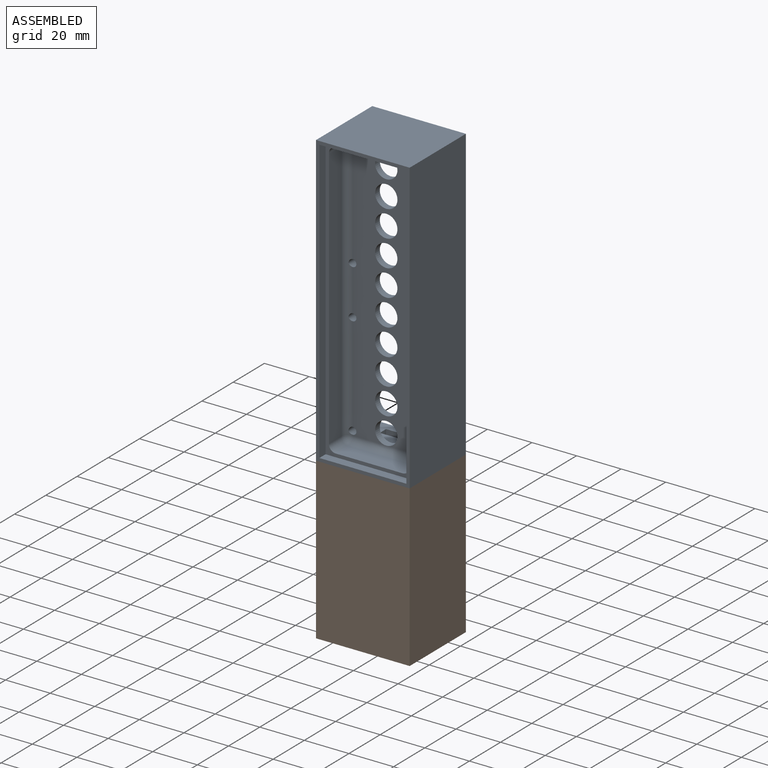
[diagram: assembled view]
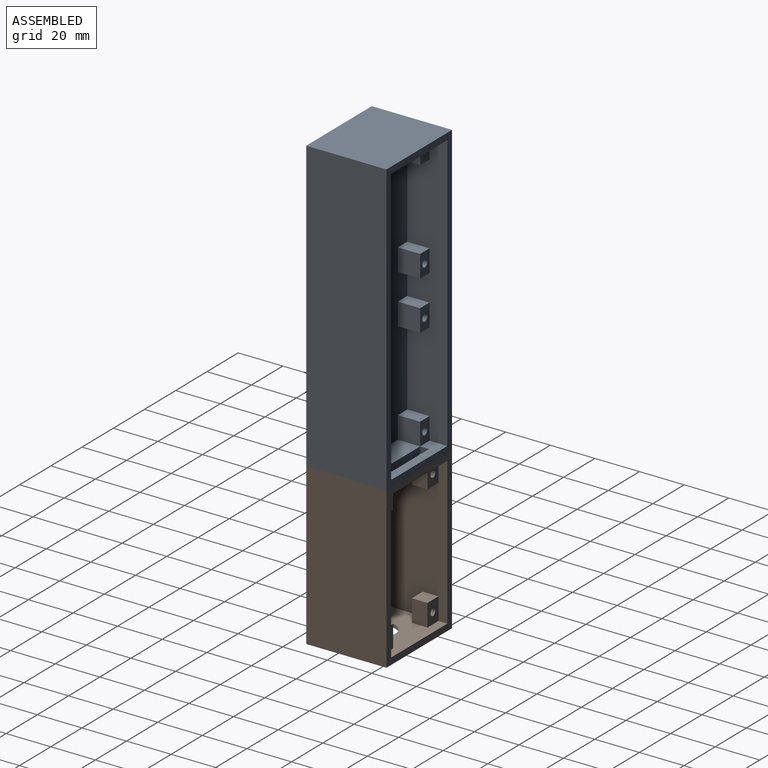
[diagram: assembled view, second angle]
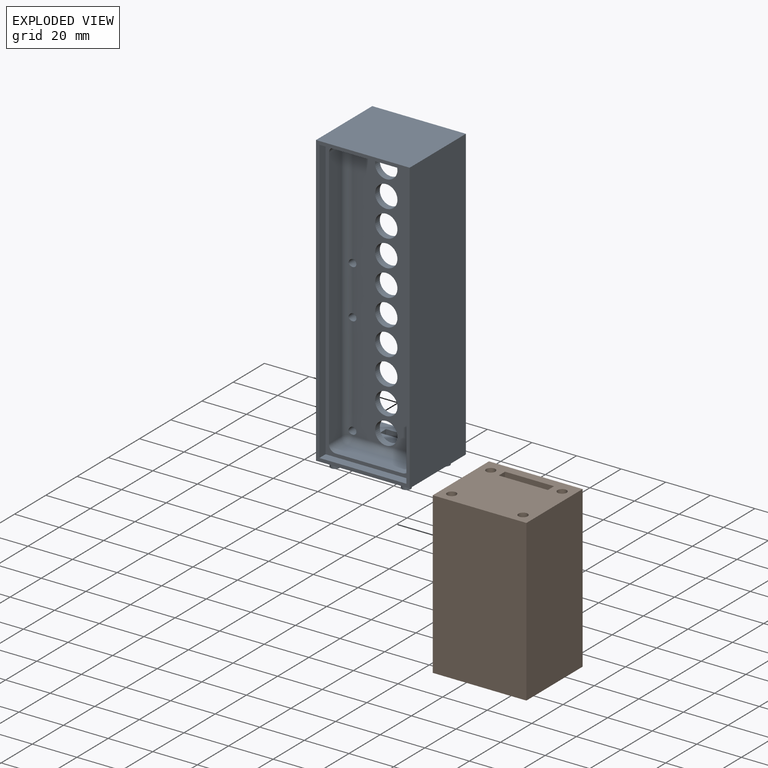
[diagram: exploded view]
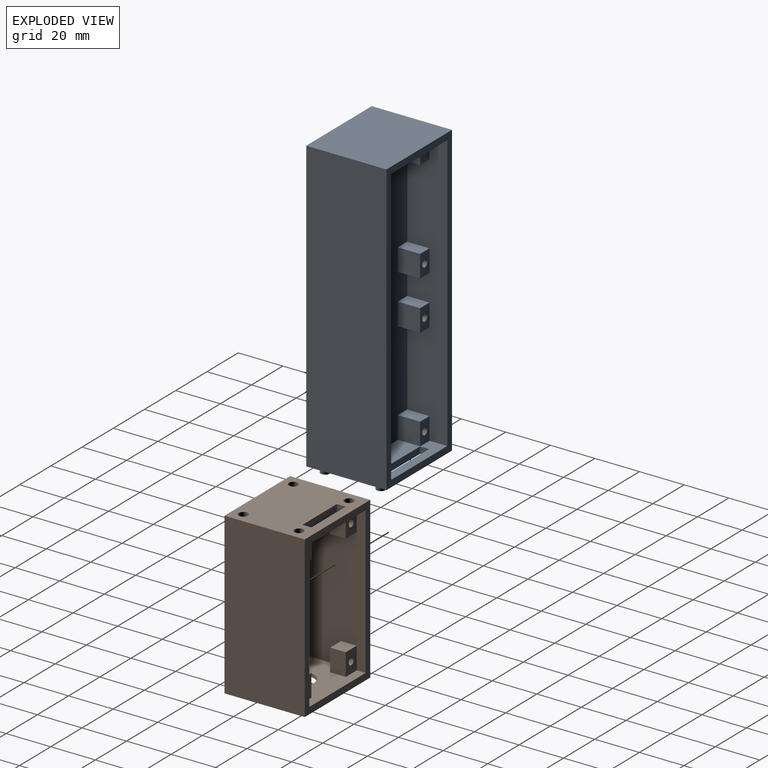
[diagram: exploded view, second angle]
ASSEMBLY  parts=2 mates=3
PART A: 92 faces, bbox 42x36x133 mm
  f0: plane 36x8mm, normal (0,0,1), area 192mm2, adj f16,f18,f20,f24,f56,f80,f82,f83
  f1: plane 127x39mm, normal (0,-1,0), area 496.7mm2, adj f59,f60,f61,f62,f63,f64,f65,f66
  f2: plane 118x30mm, normal (0,-1,0), area 2722.4mm2, adj f3,f4,f5,f6,f7,f8,f9,f10
  f3: cylinder r=5mm len=10mm, axis (0,1,0), area 94.2mm2, adj f2,f57
  f4: cylinder r=5mm len=10mm, axis (0,1,0), area 94.2mm2, adj f2,f57
  f5: cylinder r=5mm len=10mm, axis (0,1,0), area 94.2mm2, adj f2,f57
  f6: cylinder r=5mm len=10mm, axis (0,1,0), area 94.2mm2, adj f2,f57
  f7: cylinder r=5mm len=10mm, axis (0,1,0), area 94.2mm2, adj f2,f57
  f8: cylinder r=5mm len=10mm, axis (0,1,0), area 94.2mm2, adj f2,f57
  f9: cylinder r=5mm len=10mm, axis (0,1,0), area 94.2mm2, adj f2,f57
  f10: cylinder r=5mm len=10mm, axis (0,1,0), area 94.2mm2, adj f2,f57
  f11: cylinder r=5mm len=10mm, axis (0,1,0), area 94.2mm2, adj f2,f57
  f12: plane 42x36mm, normal (0,0,1), area 1512mm2, adj f13,f19,f20,f67
  f13: plane 130x36mm, normal (-1,0,0), area 4680mm2, adj f12,f14,f20,f67
  f14: plane 42x36mm, normal (0,0,-1), area 1365.7mm2, adj f13,f19,f20,f67,f80,f81,f82,f83
  f15: plane 36x18mm, normal (0,0,-1), area 528mm2, adj f16,f18,f20,f21,f25,f29,f30,f57
  f16: plane 124x18mm, normal (-1,0,0), area 1832mm2, adj f0,f15,f20,f21,f22,f23,f24,f31
  f17: plane 24x10mm, normal (0,0,1), area 240mm2, adj f39,f40,f57,f81
  f18: plane 124x18mm, normal (1,0,0), area 1832mm2, adj f0,f15,f20,f25,f26,f27,f28,f41
  f19: plane 130x36mm, normal (1,0,0), area 4680mm2, adj f12,f14,f20,f67
  f20: plane 130x42mm, normal (0,1,0), area 996mm2, adj f0,f12,f13,f14,f15,f16,f18,f19
  f21: plane 10x6mm, normal (0,1,0), area 52mm2, adj f15,f16,f30,f31,f47
  f22: plane 10x6mm, normal (0,1,0), area 52mm2, adj f16,f32,f33,f34,f48
  f23: plane 10x6mm, normal (0,1,0), area 52mm2, adj f16,f35,f36,f37,f49
  f24: plane 10x6mm, normal (0,1,0), area 52mm2, adj f0,f16,f38,f39,f50
  f25: plane 10x6mm, normal (0,1,0), area 52mm2, adj f15,f18,f28,f29,f55
  f26: plane 10x6mm, normal (0,1,0), area 52mm2, adj f18,f45,f46,f53,f54
  f27: plane 10x6mm, normal (0,1,0), area 52mm2, adj f18,f42,f43,f44,f52
  f28: plane 10x6mm, normal (0,0,-1), area 60mm2, adj f18,f25,f29,f57
  f29: plane 10x10mm, normal (1,0,0), area 100mm2, adj f15,f25,f28,f57
  f30: plane 10x10mm, normal (-1,0,0), area 100mm2, adj f15,f21,f31,f57
  f31: plane 10x6mm, normal (0,0,-1), area 60mm2, adj f16,f21,f30,f57
  f32: plane 10x6mm, normal (0,0,1), area 60mm2, adj f16,f22,f33,f57
  f33: plane 10x10mm, normal (-1,0,0), area 100mm2, adj f22,f32,f34,f57
  f34: plane 10x6mm, normal (0,0,-1), area 60mm2, adj f16,f22,f33,f57
  f35: plane 10x6mm, normal (0,0,1), area 60mm2, adj f16,f23,f36,f57
  f36: plane 10x10mm, normal (-1,0,0), area 100mm2, adj f23,f35,f37,f57
  f37: plane 10x6mm, normal (0,0,-1), area 60mm2, adj f16,f23,f36,f57
  f38: plane 10x6mm, normal (0,0,1), area 60mm2, adj f16,f24,f39,f57
  f39: plane 10x10mm, normal (-1,0,0), area 100mm2, adj f17,f24,f38,f57
  f40: plane 10x10mm, normal (1,0,0), area 100mm2, adj f17,f41,f56,f57
  f41: plane 10x6mm, normal (0,0,1), area 60mm2, adj f18,f40,f56,f57
  f42: plane 10x6mm, normal (0,0,-1), area 60mm2, adj f18,f27,f43,f57
  f43: plane 10x10mm, normal (1,0,0), area 100mm2, adj f27,f42,f44,f57
  f44: plane 10x6mm, normal (0,0,1), area 60mm2, adj f18,f27,f43,f57
  f45: plane 10x6mm, normal (0,0,-1), area 60mm2, adj f18,f26,f46,f57
  f46: plane 10x10mm, normal (1,0,0), area 100mm2, adj f26,f45,f54,f57
  f47: cylinder r=1.6mm len=13.46mm, axis (0,1,0), area 131.8mm2, adj f2,f21,f71
  f48: cylinder r=1.6mm len=13.46mm, axis (0,1,0), area 131.8mm2, adj f2,f22,f71
  f49: cylinder r=1.6mm len=13.46mm, axis (0,1,0), area 131.8mm2, adj f2,f23,f71
  f50: cylinder r=1.6mm len=13.46mm, axis (0,1,0), area 131.8mm2, adj f2,f24,f71
  f51: cylinder r=1.6mm len=13.46mm, axis (0,1,0), area 131.8mm2, adj f2,f56,f77
  f52: cylinder r=1.6mm len=13.46mm, axis (0,1,0), area 131.8mm2, adj f2,f27,f77
  f53: cylinder r=1.6mm len=13.46mm, axis (0,1,0), area 131.8mm2, adj f2,f26,f77
  f54: plane 10x6mm, normal (0,0,1), area 60mm2, adj f18,f26,f46,f57
  f55: cylinder r=1.6mm len=13.46mm, axis (0,1,0), area 131.8mm2, adj f2,f25,f77
  f56: plane 10x6mm, normal (0,1,0), area 52mm2, adj f0,f18,f40,f41,f51
  f57: plane 124x36mm, normal (0,1,0), area 3198.6mm2, adj f3,f4,f5,f6,f7,f8,f9,f10
  f58: cylinder r=5mm len=10mm, axis (0,1,0), area 94.2mm2, adj f2,f57
  f59: plane 118x8mm, normal (1,0,0), area 944mm2, adj f1,f73,f77,f79
  f60: plane 30x8mm, normal (0,0,-1), area 240mm2, adj f1,f70,f76,f79
  f61: plane 118x8mm, normal (-1,0,0), area 944mm2, adj f1,f68,f70,f71
  f62: plane 30x8mm, normal (0,0,1), area 240mm2, adj f1,f68,f72,f73
  f63: plane 39x4mm, normal (0,0,1), area 156mm2, adj f1,f64,f66,f67
  f64: plane 127x4mm, normal (1,0,0), area 508mm2, adj f1,f63,f65,f67
  f65: plane 39x4mm, normal (0,0,-1), area 156mm2, adj f1,f64,f66,f67
  f66: plane 127x4mm, normal (-1,0,0), area 508mm2, adj f1,f63,f65,f67
  f67: plane 130x42mm, normal (0,-1,0), area 507mm2, adj f12,f13,f14,f19,f63,f64,f65,f66
  f68: cylinder r=3mm len=8mm, axis (0,1,0), area 37.7mm2, adj f1,f61,f62,f69
  f69: sphere r=3mm, area 14.1mm2, adj f68,f71,f72
  f70: cylinder r=3mm len=8mm, axis (0,-1,0), area 37.7mm2, adj f1,f60,f61,f74
  f71: cylinder r=3mm len=118mm, axis (0,0,-1), area 539.3mm2, adj f2,f47,f48,f49,f50,f61,f69,f74
  f72: cylinder r=3mm len=30mm, axis (-1,0,0), area 141.4mm2, adj f2,f62,f69,f75
  f73: cylinder r=3mm len=8mm, axis (0,-1,0), area 37.7mm2, adj f1,f59,f62,f75
  f74: sphere r=3mm, area 14.1mm2, adj f70,f71,f76
  f75: sphere r=3mm, area 14.1mm2, adj f72,f73,f77
  f76: cylinder r=3mm len=30mm, axis (1,0,0), area 141.4mm2, adj f2,f60,f74,f78
  f77: cylinder r=3mm len=118mm, axis (0,0,1), area 539.3mm2, adj f2,f51,f52,f53,f55,f59,f75,f78
  f78: sphere r=3mm, area 14.1mm2, adj f76,f77,f79
  f79: cylinder r=3mm len=8mm, axis (0,1,0), area 37.7mm2, adj f1,f59,f60,f78
  f80: plane 4x3mm, normal (-1,0,0), area 12mm2, adj f0,f14,f81,f83
  f81: plane 24x3mm, normal (0,1,0), area 72mm2, adj f14,f17,f80,f82
  f82: plane 4x3mm, normal (1,0,0), area 12mm2, adj f0,f14,f81,f83
  f83: plane 24x3mm, normal (0,-1,0), area 72mm2, adj f0,f14,f80,f82
  f84: cylinder r=2mm len=4mm, axis (0,0,1), area 37.7mm2, adj f14,f85
  f85: plane 4x4mm, normal (0,0,-1), area 12.6mm2, adj f84
  f86: cylinder r=2mm len=4mm, axis (0,0,1), area 37.7mm2, adj f14,f87
  f87: plane 4x4mm, normal (0,0,-1), area 12.6mm2, adj f86
  f88: cylinder r=2mm len=4mm, axis (0,0,1), area 37.7mm2, adj f14,f89
  f89: plane 4x4mm, normal (0,0,-1), area 12.6mm2, adj f88
  f90: cylinder r=2mm len=4mm, axis (0,0,1), area 37.7mm2, adj f14,f91
  f91: plane 4x4mm, normal (0,0,-1), area 12.6mm2, adj f90
PART B: 49 faces, bbox 42x36x72 mm
  f0: plane 4.1x4.05mm, normal (0,0,-1), area 13.2mm2, adj f29,f47
  f1: plane 4.1x4.05mm, normal (0,0,-1), area 13.2mm2, adj f36,f46
  f2: plane 36x4mm, normal (0,0,1), area 143.9mm2, adj f16,f18,f26,f29,f36,f43,f46,f47
  f3: plane 42x36mm, normal (0,0,-1), area 1371.2mm2, adj f9,f10,f24,f25,f26,f28,f29,f31
  f4: plane 7x7mm, normal (0,0,-1), area 49mm2, adj f5,f18,f39,f45
  f5: plane 10x7mm, normal (1,0,0), area 70mm2, adj f4,f19,f39,f45
  f6: plane 10x7mm, normal (-1,0,0), area 70mm2, adj f7,f19,f42,f48
  f7: plane 7x7mm, normal (0,0,-1), area 49mm2, adj f6,f16,f42,f48
  f8: plane 7x7mm, normal (0,0,1), area 49mm2, adj f9,f16,f41,f47
  f9: plane 13x7mm, normal (-1,0,0), area 82mm2, adj f3,f8,f17,f41,f43,f44,f47
  f10: plane 13x7mm, normal (1,0,0), area 82mm2, adj f3,f11,f17,f40,f43,f44,f46
  f11: plane 7x7mm, normal (0,0,1), area 49mm2, adj f10,f18,f40,f46
  f12: cylinder r=1.6mm len=7mm, axis (0,1,0), area 70.4mm2, adj f42,f48
  f13: cylinder r=1.6mm len=7mm, axis (0,1,0), area 70.4mm2, adj f41,f47
  f14: cylinder r=1.6mm len=7mm, axis (0,1,0), area 70.4mm2, adj f40,f46
  f15: cylinder r=1.6mm len=7mm, axis (0,1,0), area 70.4mm2, adj f39,f45
  f16: plane 66x32mm, normal (-1,0,0), area 1972mm2, adj f2,f7,f8,f17,f19,f21,f26,f27
  f17: plane 36x24mm, normal (0,0,1), area 800.9mm2, adj f9,f10,f16,f18,f27,f31,f35,f40
  f18: plane 66x32mm, normal (1,0,0), area 1972mm2, adj f2,f4,f11,f17,f19,f22,f26,f27
  f19: plane 36x32mm, normal (0,0,-1), area 925.3mm2, adj f5,f6,f16,f18,f20,f26,f27,f39
  f20: cylinder r=6.4mm len=12.8mm, axis (0,0,1), area 60.3mm2, adj f19,f38
  f21: plane 0.55x0.21mm, normal (0,0,1), area 0mm2, adj f16,f27,f35
  f22: plane 0.55x0.21mm, normal (0,0,1), area 0mm2, adj f18,f27,f31
  f23: plane 42x36mm, normal (0,0,1), area 1257.5mm2, adj f24,f25,f26,f28,f37
  f24: plane 72x36mm, normal (-1,0,0), area 2592mm2, adj f3,f23,f26,f28
  f25: plane 72x36mm, normal (1,0,0), area 2592mm2, adj f3,f23,f26,f28
  f26: plane 72x42mm, normal (0,1,0), area 648mm2, adj f2,f3,f16,f18,f19,f23,f24,f25
  f27: plane 66x36mm, normal (0,1,0), area 2376mm2, adj f16,f17,f18,f19,f21,f22,f30,f33
  f28: plane 72x42mm, normal (0,-1,0), area 3024mm2, adj f3,f23,f24,f25
  f29: cylinder r=2.05mm len=4.1mm, axis (0,0,-1), area 38.6mm2, adj f0,f2,f3
  f30: plane 3.58x1.05mm, normal (0,0,-1), area 2.7mm2, adj f27,f31
  f31: cylinder r=2.05mm len=4.1mm, axis (0,0,-1), area 38.6mm2, adj f3,f17,f22,f30,f32
  f32: plane 0.9x0.05mm, normal (0,0,-1), area 0mm2, adj f18,f31
  f33: plane 3.58x1.05mm, normal (0,0,-1), area 2.7mm2, adj f27,f35
  f34: plane 0.9x0.05mm, normal (0,0,-1), area 0mm2, adj f16,f35
  f35: cylinder r=2.05mm len=4.1mm, axis (0,0,-1), area 38.6mm2, adj f3,f17,f21,f33,f34
  f36: cylinder r=2.05mm len=4.1mm, axis (0,0,-1), area 38.6mm2, adj f1,f2,f3
  f37: cylinder r=9mm len=18mm, axis (0,0,1), area 84.8mm2, adj f23,f38
  f38: plane 18x18mm, normal (0,0,1), area 125.8mm2, adj f20,f37
  f39: plane 10x7mm, normal (0,-1,0), area 62mm2, adj f4,f5,f15,f18,f19
  f40: plane 10x7mm, normal (0,-1,0), area 62mm2, adj f10,f11,f14,f17,f18
  f41: plane 10x7mm, normal (0,-1,0), area 62mm2, adj f8,f9,f13,f16,f17
  f42: plane 10x7mm, normal (0,-1,0), area 62mm2, adj f6,f7,f12,f16,f19
  f43: plane 22x3mm, normal (0,-1,0), area 66mm2, adj f2,f3,f9,f10
  f44: plane 22x3mm, normal (0,1,0), area 66mm2, adj f3,f9,f10,f17
  f45: plane 10x7mm, normal (0,1,0), area 62mm2, adj f4,f5,f15,f18,f19
  f46: plane 10x7mm, normal (0,1,0), area 62mm2, adj f1,f2,f10,f11,f14,f18
  f47: plane 10x7mm, normal (0,1,0), area 62mm2, adj f0,f2,f8,f9,f13,f16
  f48: plane 10x7mm, normal (0,1,0), area 62mm2, adj f6,f7,f12,f16,f19
PLACE A t=(-22.46,5.56,2.29)mm fixed
PLACE B rot(axis=(0,1,0),180deg) t=(-22.46,5.56,-98.71)mm
MATE planar A.f19 <-> B.f24  axis (1,0,0) through (-1.46,-12.44,2.29)mm
MATE planar A.f14 <-> B.f3  axis (0,0,-1) through (-22.46,-13.27,-62.71)mm
MATE planar A.f20 <-> B.f26  axis (0,1,0) through (-22.46,5.56,-59.71)mm
